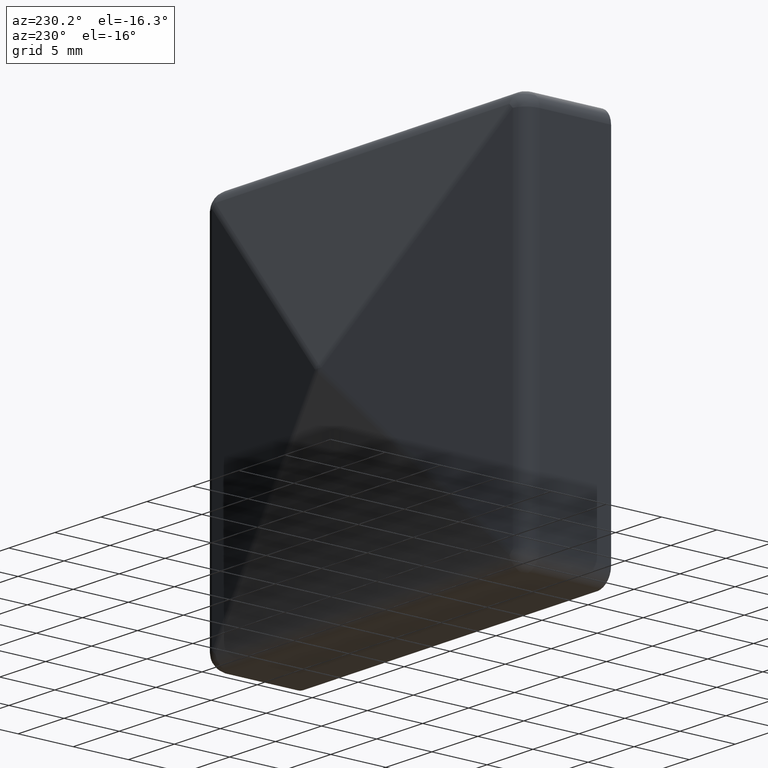
[diagram: clean part render]
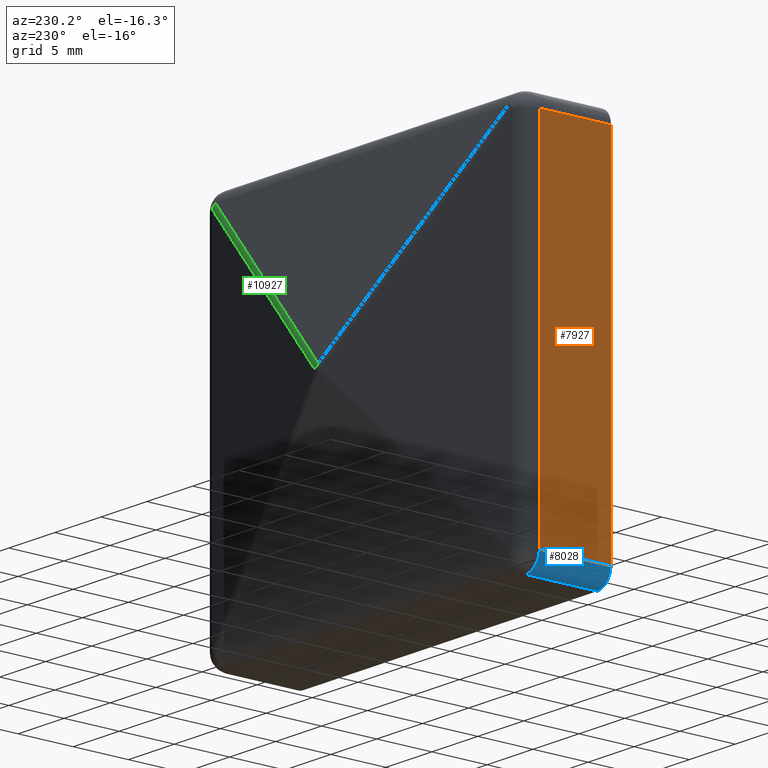
[diagram: same view with three faces highlighted in distinct colors, each labeled with its STEP entity id]
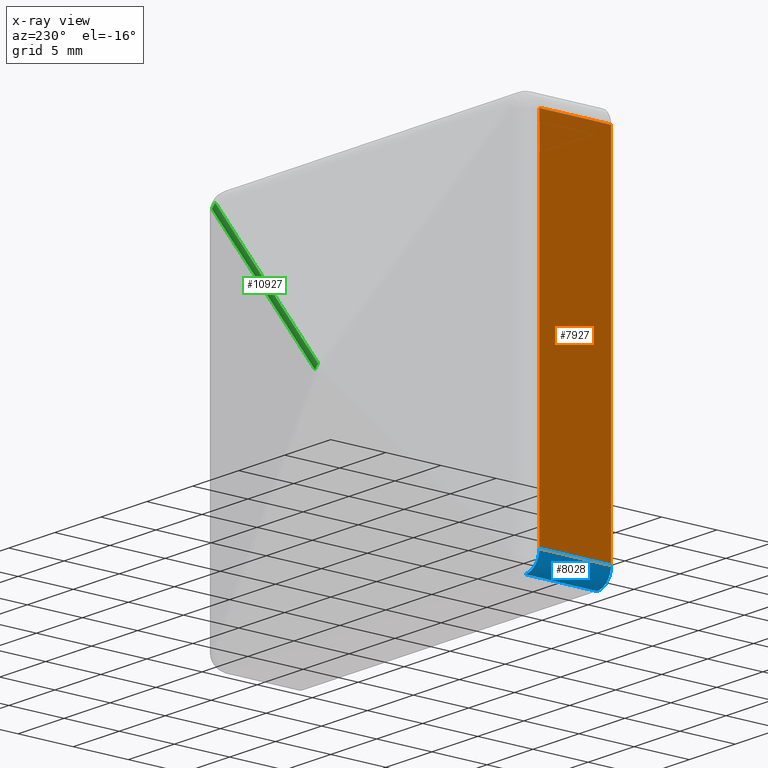
[diagram: x-ray of the same camera — body ghosted, the three highlighted faces saturated]
A machine part, auxiliary view with three faces highlighted in distinct colors.
The next image is the same camera in x-ray (body ghosted, the three faces saturated) — at least one of them is partly hidden behind the body in this view.
Their STEP definitions:

[orange] entity #7927 — the highlighted planar face has unit normal (1, -0, 0).
#130 = DIRECTION ( 'NONE',  ( -0.0000000000000000000, 1.000000000000000000, -0.0000000000000000000 ) ) ;
#545 = FACE_OUTER_BOUND ( 'NONE', #8200, .T. ) ;
#598 = CARTESIAN_POINT ( 'NONE',  ( -17.50000000000000000, 0.0000000000000000000, -17.50000000000001400 ) ) ;
#1028 = PLANE ( 'NONE',  #6846 ) ;
#1100 = LINE ( 'NONE', #3229, #5690 ) ;
#1328 = CARTESIAN_POINT ( 'NONE',  ( -17.50000000000002800, 0.0000000000000000000, 15.99999999999998600 ) ) ;
#3033 = EDGE_CURVE ( 'NONE', #10322, #3484, #14592, .T. ) ;
#3112 = CARTESIAN_POINT ( 'NONE',  ( -17.50000000000000000, 12.00000000000000000, -16.00000000000001400 ) ) ;
#3229 = CARTESIAN_POINT ( 'NONE',  ( -17.50000000000002800, 12.00000000000000000, 15.99999999999998600 ) ) ;
#3466 = VECTOR ( 'NONE', #9718, 1000.000000000000000 ) ;
#3484 = VERTEX_POINT ( 'NONE', #8680 ) ;
#3498 = DIRECTION ( 'NONE',  ( 7.930164461608260400E-016, 0.0000000000000000000, -1.000000000000000000 ) ) ;
#3683 = ORIENTED_EDGE ( 'NONE', *, *, #9329, .T. ) ;
#4648 = EDGE_CURVE ( 'NONE', #10322, #15896, #10090, .T. ) ;
#4872 = CARTESIAN_POINT ( 'NONE',  ( -17.49999999999996100, 6.500000000000000000, -16.00000000000001400 ) ) ;
#5534 = DIRECTION ( 'NONE',  ( 0.0000000000000000000, -1.000000000000000000, 0.0000000000000000000 ) ) ;
#5690 = VECTOR ( 'NONE', #130, 1000.000000000000000 ) ;
#6638 = ORIENTED_EDGE ( 'NONE', *, *, #4648, .T. ) ;
#6846 = AXIS2_PLACEMENT_3D ( 'NONE', #12330, #11085, #3498 ) ;
#7101 = ORIENTED_EDGE ( 'NONE', *, *, #3033, .F. ) ;
#7927 = ADVANCED_FACE ( 'NONE', ( #545 ), #1028, .F. ) ;
#8200 = EDGE_LOOP ( 'NONE', ( #9447, #3683, #7101, #6638 ) ) ;
#8680 = CARTESIAN_POINT ( 'NONE',  ( -17.49999999999996100, 6.500000000000000000, 15.99999999999998600 ) ) ;
#9329 = EDGE_CURVE ( 'NONE', #13710, #3484, #1100, .T. ) ;
#9447 = ORIENTED_EDGE ( 'NONE', *, *, #11802, .T. ) ;
#9718 = DIRECTION ( 'NONE',  ( -7.930164461608260400E-016, 0.0000000000000000000, 1.000000000000000000 ) ) ;
#9961 = VECTOR ( 'NONE', #14724, 1000.000000000000000 ) ;
#10090 = LINE ( 'NONE', #3112, #14515 ) ;
#10322 = VERTEX_POINT ( 'NONE', #4872 ) ;
#11085 = DIRECTION ( 'NONE',  ( 1.000000000000000000, -0.0000000000000000000, 7.930164461608260400E-016 ) ) ;
#11471 = LINE ( 'NONE', #598, #3466 ) ;
#11802 = EDGE_CURVE ( 'NONE', #15896, #13710, #11471, .T. ) ;
#12067 = CARTESIAN_POINT ( 'NONE',  ( -17.50000000000000000, 0.0000000000000000000, -16.00000000000001400 ) ) ;
#12330 = CARTESIAN_POINT ( 'NONE',  ( -17.50000000000000000, 12.00000000000000000, -17.50000000000001400 ) ) ;
#13710 = VERTEX_POINT ( 'NONE', #1328 ) ;
#14515 = VECTOR ( 'NONE', #5534, 1000.000000000000000 ) ;
#14592 = LINE ( 'NONE', #16090, #9961 ) ;
#14724 = DIRECTION ( 'NONE',  ( -0.0000000000000000000, -0.0000000000000000000, 1.000000000000000000 ) ) ;
#15896 = VERTEX_POINT ( 'NONE', #12067 ) ;
#16090 = CARTESIAN_POINT ( 'NONE',  ( -17.49999999999996100, 6.500000000000000000, -17.50000000000001400 ) ) ;

[blue] entity #8028 — the highlighted cylindrical surface (edge-blend (fillet) strip) has radius 1.5 mm, axis along (-0, -1, 0).
#284 = DIRECTION ( 'NONE',  ( -0.0000000000000000000, -1.000000000000000000, 0.0000000000000000000 ) ) ;
#292 = VECTOR ( 'NONE', #10796, 1000.000000000000000 ) ;
#468 = EDGE_LOOP ( 'NONE', ( #5698, #12327, #2507, #6425 ) ) ;
#780 = CARTESIAN_POINT ( 'NONE',  ( -16.00000000000000000, 12.00000000000000000, -17.50000000000001400 ) ) ;
#2133 = CYLINDRICAL_SURFACE ( 'NONE', #5750, 1.500000000000001300 ) ;
#2307 = LINE ( 'NONE', #780, #292 ) ;
#2507 = ORIENTED_EDGE ( 'NONE', *, *, #9514, .F. ) ;
#2969 = DIRECTION ( 'NONE',  ( 0.0000000000000000000, 0.0000000000000000000, 1.000000000000000000 ) ) ;
#3112 = CARTESIAN_POINT ( 'NONE',  ( -17.50000000000000000, 12.00000000000000000, -16.00000000000001400 ) ) ;
#3325 = CARTESIAN_POINT ( 'NONE',  ( -16.00000000000000000, 6.500000000000000000, -17.49999999999995700 ) ) ;
#4648 = EDGE_CURVE ( 'NONE', #10322, #15896, #10090, .T. ) ;
#4872 = CARTESIAN_POINT ( 'NONE',  ( -17.49999999999996100, 6.500000000000000000, -16.00000000000001400 ) ) ;
#5078 = CARTESIAN_POINT ( 'NONE',  ( -16.00000000000000000, 0.0000000000000000000, -17.50000000000001400 ) ) ;
#5404 = DIRECTION ( 'NONE',  ( -0.0000000000000000000, -1.000000000000000000, -0.0000000000000000000 ) ) ;
#5534 = DIRECTION ( 'NONE',  ( 0.0000000000000000000, -1.000000000000000000, 0.0000000000000000000 ) ) ;
#5698 = ORIENTED_EDGE ( 'NONE', *, *, #4648, .F. ) ;
#5750 = AXIS2_PLACEMENT_3D ( 'NONE', #7455, #11143, #8643 ) ;
#6425 = ORIENTED_EDGE ( 'NONE', *, *, #8592, .F. ) ;
#7455 = CARTESIAN_POINT ( 'NONE',  ( -16.00000000000000000, 12.00000000000000000, -16.00000000000001400 ) ) ;
#8028 = ADVANCED_FACE ( 'NONE', ( #12336 ), #2133, .T. ) ;
#8072 = DIRECTION ( 'NONE',  ( 0.0000000000000000000, 0.0000000000000000000, -1.000000000000000000 ) ) ;
#8326 = VERTEX_POINT ( 'NONE', #3325 ) ;
#8592 = EDGE_CURVE ( 'NONE', #15896, #9347, #14931, .T. ) ;
#8643 = DIRECTION ( 'NONE',  ( 0.0000000000000000000, 0.0000000000000000000, -1.000000000000000000 ) ) ;
#9347 = VERTEX_POINT ( 'NONE', #5078 ) ;
#9514 = EDGE_CURVE ( 'NONE', #9347, #8326, #2307, .T. ) ;
#10090 = LINE ( 'NONE', #3112, #14515 ) ;
#10322 = VERTEX_POINT ( 'NONE', #4872 ) ;
#10521 = EDGE_CURVE ( 'NONE', #10322, #8326, #13499, .T. ) ;
#10796 = DIRECTION ( 'NONE',  ( -0.0000000000000000000, 1.000000000000000000, -0.0000000000000000000 ) ) ;
#11143 = DIRECTION ( 'NONE',  ( -0.0000000000000000000, -1.000000000000000000, 0.0000000000000000000 ) ) ;
#12067 = CARTESIAN_POINT ( 'NONE',  ( -17.50000000000000000, 0.0000000000000000000, -16.00000000000001400 ) ) ;
#12327 = ORIENTED_EDGE ( 'NONE', *, *, #10521, .T. ) ;
#12336 = FACE_OUTER_BOUND ( 'NONE', #468, .T. ) ;
#12641 = AXIS2_PLACEMENT_3D ( 'NONE', #13075, #5404, #2969 ) ;
#13075 = CARTESIAN_POINT ( 'NONE',  ( -16.00000000000000000, 0.0000000000000000000, -16.00000000000001400 ) ) ;
#13499 = CIRCLE ( 'NONE', #14956, 1.500000000000001300 ) ;
#14468 = CARTESIAN_POINT ( 'NONE',  ( -16.00000000000000000, 6.500000000000000900, -16.00000000000001400 ) ) ;
#14515 = VECTOR ( 'NONE', #5534, 1000.000000000000000 ) ;
#14931 = CIRCLE ( 'NONE', #12641, 1.499999999999999600 ) ;
#14956 = AXIS2_PLACEMENT_3D ( 'NONE', #14468, #284, #8072 ) ;
#15896 = VERTEX_POINT ( 'NONE', #12067 ) ;

[green] entity #10927 — the highlighted cylindrical surface (edge-blend (fillet) strip) has radius 1.5 mm, axis along (0.6963, -0.1741, 0.6963).
#201 = CARTESIAN_POINT ( 'NONE',  ( 2.820887554901612300E-016, 10.50000000000000000, 2.710505431213761100E-016 ) ) ;
#513 = EDGE_CURVE ( 'NONE', #3790, #8501, #16540, .T. ) ;
#546 = ORIENTED_EDGE ( 'NONE', *, *, #7149, .F. ) ;
#1352 = ORIENTED_EDGE ( 'NONE', *, *, #2611, .T. ) ;
#1758 = CIRCLE ( 'NONE', #6779, 1.500000000000000900 ) ;
#1786 = CARTESIAN_POINT ( 'NONE',  ( 0.3638034375545006700, 11.95521375021799800, -3.469446951953614200E-015 ) ) ;
#2444 = CARTESIAN_POINT ( 'NONE',  ( 0.0000000000000000000, 11.95521375021799800, 0.3638034375545006700 ) ) ;
#2611 = EDGE_CURVE ( 'NONE', #15495, #8501, #1758, .T. ) ;
#3236 = CIRCLE ( 'NONE', #9453, 1.499999999999999800 ) ;
#3428 = DIRECTION ( 'NONE',  ( -0.6963106238227913000, 0.1740776559556982700, -0.6963106238227913000 ) ) ;
#3790 = VERTEX_POINT ( 'NONE', #1786 ) ;
#4134 = DIRECTION ( 'NONE',  ( 0.7071067811865475700, 0.0000000000000000000, -0.7071067811865475700 ) ) ;
#5374 = CARTESIAN_POINT ( 'NONE',  ( 15.99999999999995900, 7.955213750217997600, 16.36380343755445900 ) ) ;
#5508 = DIRECTION ( 'NONE',  ( 0.6963106238227913000, -0.1740776559556983000, 0.6963106238227913000 ) ) ;
#5572 = DIRECTION ( 'NONE',  ( 0.6963106238227913000, -0.1740776559556982700, 0.6963106238227913000 ) ) ;
#6375 = EDGE_LOOP ( 'NONE', ( #1352, #11073, #546, #14268 ) ) ;
#6779 = AXIS2_PLACEMENT_3D ( 'NONE', #15371, #8833, #8893 ) ;
#7149 = EDGE_CURVE ( 'NONE', #13082, #3790, #3236, .T. ) ;
#8501 = VERTEX_POINT ( 'NONE', #16485 ) ;
#8833 = DIRECTION ( 'NONE',  ( -0.6963106238227877400, 0.1740776559557000200, -0.6963106238227944100 ) ) ;
#8893 = DIRECTION ( 'NONE',  ( -0.7071067811865504600, 0.0000000000000000000, 0.7071067811865445800 ) ) ;
#9223 = VECTOR ( 'NONE', #3428, 1000.000000000000100 ) ;
#9228 = DIRECTION ( 'NONE',  ( -0.7071067811865474600, 0.0000000000000000000, 0.7071067811865476800 ) ) ;
#9453 = AXIS2_PLACEMENT_3D ( 'NONE', #201, #14278, #9228 ) ;
#10927 = ADVANCED_FACE ( 'NONE', ( #11074 ), #13695, .T. ) ;
#11073 = ORIENTED_EDGE ( 'NONE', *, *, #513, .F. ) ;
#11074 = FACE_OUTER_BOUND ( 'NONE', #6375, .T. ) ;
#12319 = CARTESIAN_POINT ( 'NONE',  ( 9.757575757575741800, 9.515819810824057300, 10.12137919513023800 ) ) ;
#12756 = VECTOR ( 'NONE', #5508, 1000.000000000000100 ) ;
#13080 = CARTESIAN_POINT ( 'NONE',  ( -7.212121212121214600, 12.30303030303030800, -7.212121212121214600 ) ) ;
#13082 = VERTEX_POINT ( 'NONE', #2444 ) ;
#13695 = CYLINDRICAL_SURFACE ( 'NONE', #14215, 1.499999999999999600 ) ;
#14182 = CARTESIAN_POINT ( 'NONE',  ( -6.848317774566718100, 13.75824405324830800, -7.212121212121211000 ) ) ;
#14215 = AXIS2_PLACEMENT_3D ( 'NONE', #13080, #5572, #4134 ) ;
#14268 = ORIENTED_EDGE ( 'NONE', *, *, #16482, .F. ) ;
#14278 = DIRECTION ( 'NONE',  ( -0.6963106238227914100, 0.1740776559556982700, -0.6963106238227911900 ) ) ;
#14646 = LINE ( 'NONE', #12319, #9223 ) ;
#15371 = CARTESIAN_POINT ( 'NONE',  ( 15.99999999999995900, 6.500000000000000900, 15.99999999999995600 ) ) ;
#15495 = VERTEX_POINT ( 'NONE', #5374 ) ;
#16482 = EDGE_CURVE ( 'NONE', #15495, #13082, #14646, .T. ) ;
#16485 = CARTESIAN_POINT ( 'NONE',  ( 16.36380343755446300, 7.955213750217997600, 15.99999999999995900 ) ) ;
#16540 = LINE ( 'NONE', #14182, #12756 ) ;